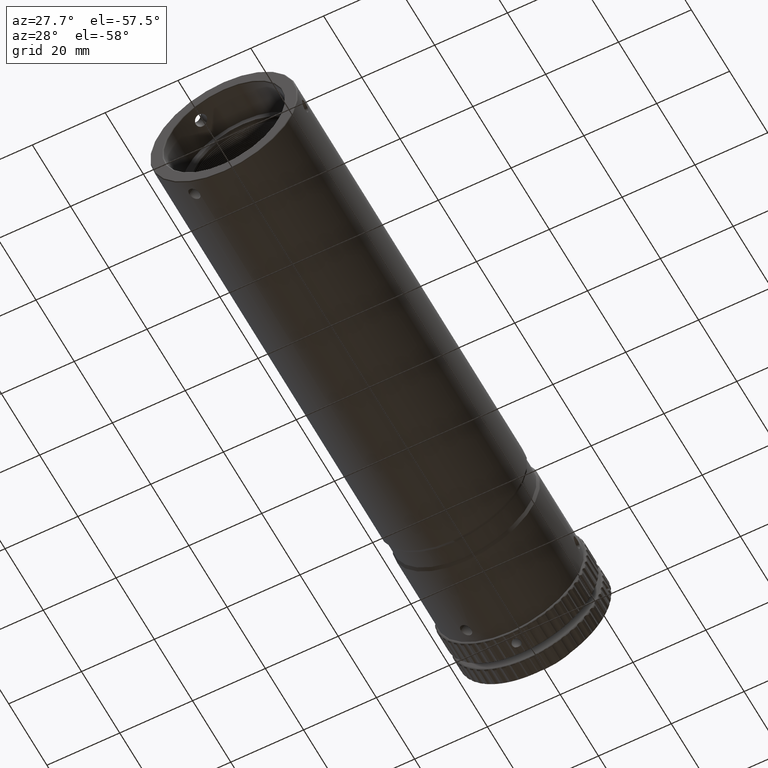
[diagram: clean part render]
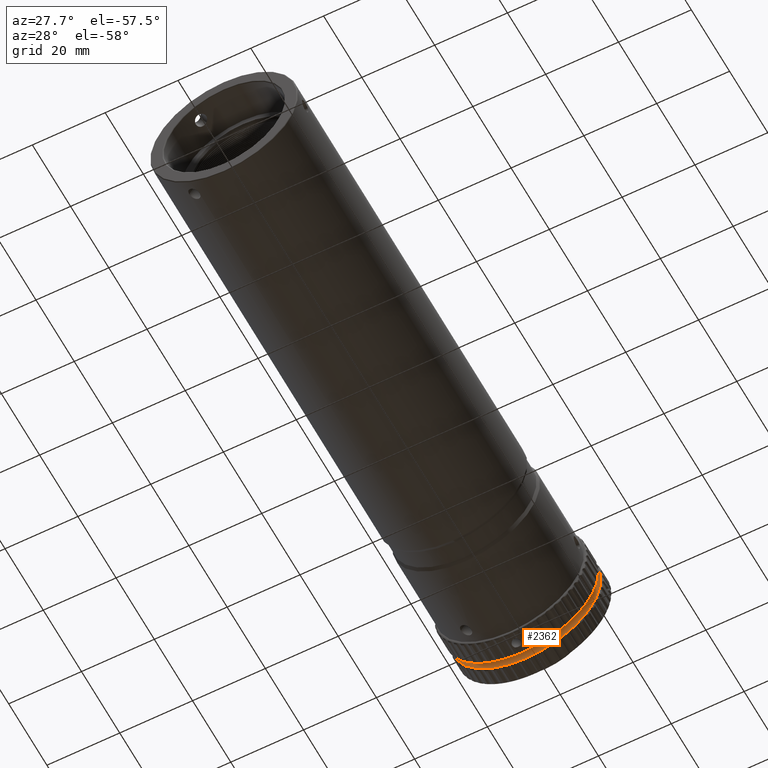
[diagram: same view with one face highlighted and labeled with its STEP entity id]
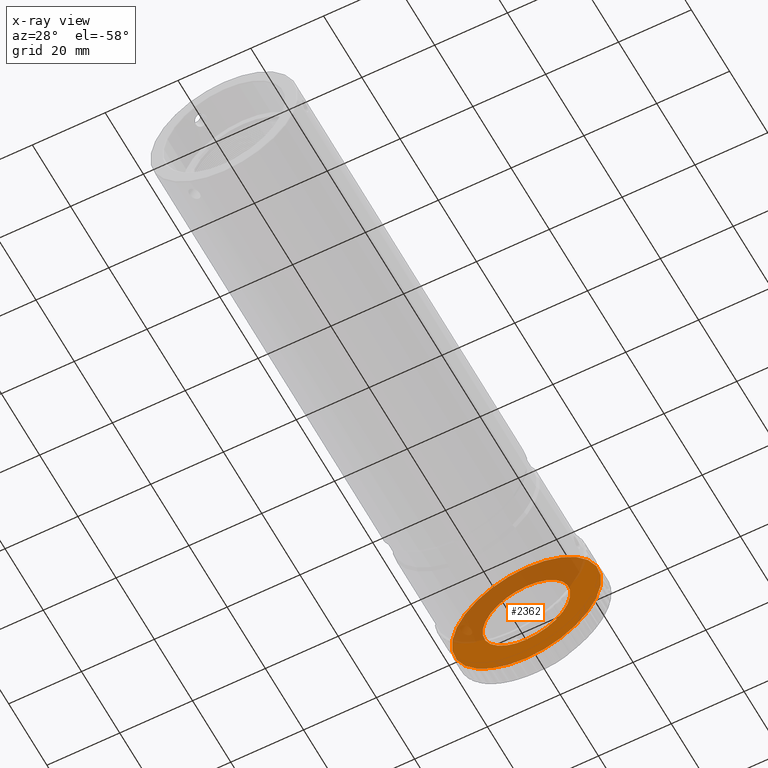
[diagram: x-ray of the same camera — body ghosted, the highlighted face saturated]
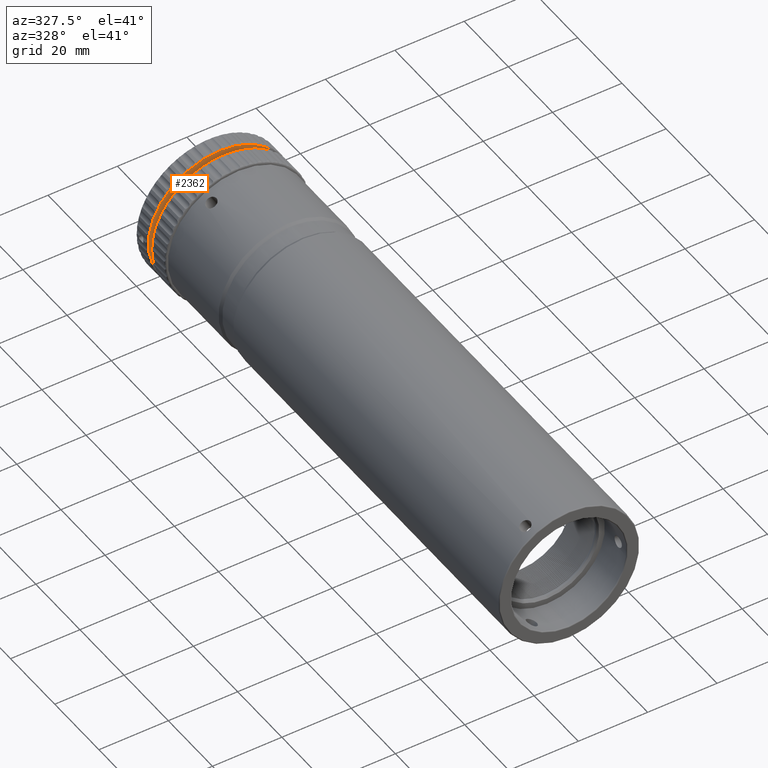
[diagram: same view with one face highlighted and labeled with its STEP entity id]
A machine part, auxiliary view. The second image highlights one B-rep face of the part: STEP entity #2362.
The next image is the same camera in x-ray: the body ghosted, the highlighted face saturated — about 44% of this face is hidden behind the body in this view.
A second angle (auxiliary view) of the same face is appended — the face is thin or edge-on in the first view.
In plain terms, the highlighted planar face has unit normal (0, -1, 0).
Its self-contained STEP definition (entity closure, byte-faithful):
#424 = CARTESIAN_POINT ( 'NONE',  ( -83.32263811662117800, 128.6670521852558100, 0.0000000000000000000 ) ) ;
#961 = CARTESIAN_POINT ( 'NONE',  ( -83.32263811662117800, 128.6670521852558100, 20.49999999999734600 ) ) ;
#1917 = EDGE_CURVE ( 'NONE', #7963, #7963, #2152, .T. ) ;
#2152 = CIRCLE ( 'NONE', #12153, 20.49999999999734600 ) ;
#2327 = EDGE_CURVE ( 'NONE', #7638, #7638, #10394, .T. ) ;
#2362 = ADVANCED_FACE ( 'NONE', ( #12528, #10076 ), #13694, .T. ) ;
#2410 = AXIS2_PLACEMENT_3D ( 'NONE', #5854, #11599, #8421 ) ;
#3200 = DIRECTION ( 'NONE',  ( 0.0000000000000000000, 0.0000000000000000000, 1.000000000000000000 ) ) ;
#4073 = DIRECTION ( 'NONE',  ( -0.0000000000000000000, 1.000000000000000000, -0.0000000000000000000 ) ) ;
#5532 = EDGE_LOOP ( 'NONE', ( #7175 ) ) ;
#5854 = CARTESIAN_POINT ( 'NONE',  ( -83.32263811662117800, 128.6670521852558100, 0.0000000000000000000 ) ) ;
#6040 = DIRECTION ( 'NONE',  ( 0.0000000000000000000, 0.0000000000000000000, 1.000000000000000000 ) ) ;
#7092 = CARTESIAN_POINT ( 'NONE',  ( -83.32263811662117800, 128.6670521852558100, 0.0000000000000000000 ) ) ;
#7175 = ORIENTED_EDGE ( 'NONE', *, *, #2327, .T. ) ;
#7305 = EDGE_LOOP ( 'NONE', ( #11030 ) ) ;
#7638 = VERTEX_POINT ( 'NONE', #10466 ) ;
#7963 = VERTEX_POINT ( 'NONE', #961 ) ;
#8421 = DIRECTION ( 'NONE',  ( 0.0000000000000000000, -0.0000000000000000000, -1.000000000000000000 ) ) ;
#10076 = FACE_OUTER_BOUND ( 'NONE', #7305, .T. ) ;
#10394 = CIRCLE ( 'NONE', #12587, 12.04999999952004300 ) ;
#10466 = CARTESIAN_POINT ( 'NONE',  ( -83.32263811662117800, 128.6670521852558100, 12.04999999952004300 ) ) ;
#11030 = ORIENTED_EDGE ( 'NONE', *, *, #1917, .F. ) ;
#11599 = DIRECTION ( 'NONE',  ( 0.0000000000000000000, -1.000000000000000000, 0.0000000000000000000 ) ) ;
#12153 = AXIS2_PLACEMENT_3D ( 'NONE', #424, #13208, #3200 ) ;
#12528 = FACE_BOUND ( 'NONE', #5532, .T. ) ;
#12587 = AXIS2_PLACEMENT_3D ( 'NONE', #7092, #4073, #6040 ) ;
#13208 = DIRECTION ( 'NONE',  ( -0.0000000000000000000, 1.000000000000000000, -0.0000000000000000000 ) ) ;
#13694 = PLANE ( 'NONE',  #2410 ) ;